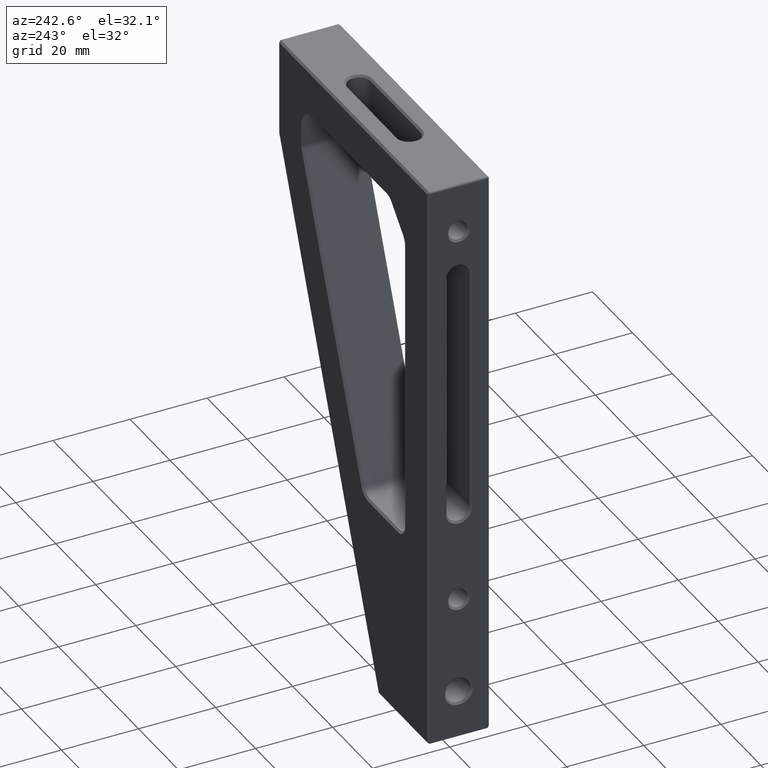
[diagram: clean part render]
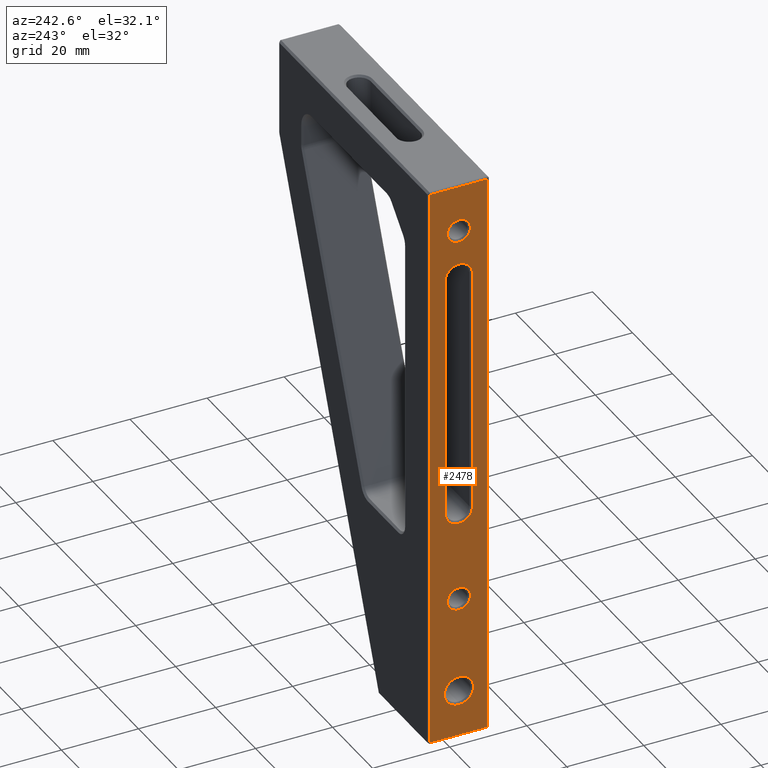
[diagram: same view with one face highlighted and labeled with its STEP entity id]
A machine part, auxiliary view. The second image highlights one B-rep face of the part: STEP entity #2478.
In plain terms, the highlighted planar face has unit normal (1, 0, -0).
Its self-contained STEP definition (entity closure, byte-faithful):
#29 = VERTEX_POINT ( 'NONE', #463 ) ;
#118 = DIRECTION ( 'NONE',  ( -1.000000000000000000, 0.000000000000000000, 0.000000000000000000 ) ) ;
#120 = AXIS2_PLACEMENT_3D ( 'NONE', #1372, #2369, #1638 ) ;
#128 = CARTESIAN_POINT ( 'NONE',  ( -40.58705027806580290, -2.083758937690479929, 115.4999999999858886 ) ) ;
#133 = DIRECTION ( 'NONE',  ( 0.000000000000000000, 0.000000000000000000, 1.000000000000000000 ) ) ;
#141 = DIRECTION ( 'NONE',  ( -1.000000000000000000, 0.000000000000000000, 0.000000000000000000 ) ) ;
#147 = VERTEX_POINT ( 'NONE', #3188 ) ;
#176 = EDGE_CURVE ( 'NONE', #1049, #421, #1603, .T. ) ;
#235 = DIRECTION ( 'NONE',  ( -1.850371707708594316E-16, 0.000000000000000000, -1.000000000000000000 ) ) ;
#246 = LINE ( 'NONE', #1510, #865 ) ;
#290 = EDGE_LOOP ( 'NONE', ( #1936 ) ) ;
#351 = VERTEX_POINT ( 'NONE', #128 ) ;
#363 = CARTESIAN_POINT ( 'NONE',  ( -40.58705027804308685, -2.083758937690479929, 87.50000000000001421 ) ) ;
#390 = LINE ( 'NONE', #904, #2036 ) ;
#400 = FACE_BOUND ( 'NONE', #290, .T. ) ;
#415 = AXIS2_PLACEMENT_3D ( 'NONE', #2472, #1475, #504 ) ;
#421 = VERTEX_POINT ( 'NONE', #925 ) ;
#443 = ORIENTED_EDGE ( 'NONE', *, *, #2701, .F. ) ;
#463 = CARTESIAN_POINT ( 'NONE',  ( -40.58705027806152543, -9.583758937690465274, 75.49999999999998579 ) ) ;
#504 = DIRECTION ( 'NONE',  ( 0.000000000000000000, 0.000000000000000000, 1.000000000000000000 ) ) ;
#534 = CIRCLE ( 'NONE', #3166, 3.800000000012460077 ) ;
#538 = DIRECTION ( 'NONE',  ( -1.000000000000000000, 0.000000000000000000, 0.000000000000000000 ) ) ;
#540 = DIRECTION ( 'NONE',  ( -1.850371707708594316E-16, 0.000000000000000000, -1.000000000000000000 ) ) ;
#572 = EDGE_CURVE ( 'NONE', #2790, #2034, #390, .T. ) ;
#609 = CARTESIAN_POINT ( 'NONE',  ( -40.58705027806152543, -9.583758937690465274, 74.99999999999998579 ) ) ;
#634 = PLANE ( 'NONE',  #120 ) ;
#692 = ORIENTED_EDGE ( 'NONE', *, *, #2921, .F. ) ;
#713 = EDGE_LOOP ( 'NONE', ( #692, #1666, #3170, #1392 ) ) ;
#715 = LINE ( 'NONE', #2996, #1160 ) ;
#753 = VERTEX_POINT ( 'NONE', #772 ) ;
#772 = CARTESIAN_POINT ( 'NONE',  ( -40.58705027805290655, 1.416241062312324051, 136.4999999999999432 ) ) ;
#779 = ORIENTED_EDGE ( 'NONE', *, *, #2639, .F. ) ;
#780 = CIRCLE ( 'NONE', #1363, 3.500000000030922820 ) ;
#864 = FACE_OUTER_BOUND ( 'NONE', #713, .T. ) ;
#865 = VECTOR ( 'NONE', #1257, 1000.000000000000000 ) ;
#890 = DIRECTION ( 'NONE',  ( 0.000000000000000000, 0.000000000000000000, 1.000000000000000000 ) ) ;
#904 = CARTESIAN_POINT ( 'NONE',  ( -40.58705027806149701, 5.916241062309521404, 224.4999999999999716 ) ) ;
#925 = CARTESIAN_POINT ( 'NONE',  ( -40.58705027809315169, -5.583758937661730037, 199.9999999999999432 ) ) ;
#969 = CARTESIAN_POINT ( 'NONE',  ( -40.58705027810344035, 1.416241062351438096, 199.9999999999999716 ) ) ;
#982 = CARTESIAN_POINT ( 'NONE',  ( -40.58705027806151833, 5.416241062309541832, 149.9999999999999716 ) ) ;
#1003 = ORIENTED_EDGE ( 'NONE', *, *, #3042, .F. ) ;
#1006 = DIRECTION ( 'NONE',  ( 0.000000000000000000, 0.000000000000000000, 1.000000000000000000 ) ) ;
#1049 = VERTEX_POINT ( 'NONE', #1611 ) ;
#1160 = VECTOR ( 'NONE', #235, 1000.000000000000000 ) ;
#1166 = DIRECTION ( 'NONE',  ( 0.000000000000000000, 0.000000000000000000, 1.000000000000000000 ) ) ;
#1174 = EDGE_LOOP ( 'NONE', ( #779, #443, #3033, #2394 ) ) ;
#1212 = VECTOR ( 'NONE', #2981, 1000.000000000000000 ) ;
#1257 = DIRECTION ( 'NONE',  ( 0.000000000000000000, 1.000000000000000000, 0.000000000000000000 ) ) ;
#1262 = EDGE_CURVE ( 'NONE', #3174, #3174, #1543, .T. ) ;
#1363 = AXIS2_PLACEMENT_3D ( 'NONE', #2852, #2283, #133 ) ;
#1372 = CARTESIAN_POINT ( 'NONE',  ( -40.58705027806152543, 5.916241062309521404, 74.99999999999998579 ) ) ;
#1380 = DIRECTION ( 'NONE',  ( -0.000000000000000000, -1.000000000000000000, -0.000000000000000000 ) ) ;
#1392 = ORIENTED_EDGE ( 'NONE', *, *, #1402, .F. ) ;
#1402 = EDGE_CURVE ( 'NONE', #29, #2421, #246, .T. ) ;
#1407 = FACE_BOUND ( 'NONE', #1531, .T. ) ;
#1461 = CIRCLE ( 'NONE', #2240, 2.999999999985902832 ) ;
#1475 = DIRECTION ( 'NONE',  ( -1.000000000000000000, 0.000000000000000000, 0.000000000000000000 ) ) ;
#1510 = CARTESIAN_POINT ( 'NONE',  ( -40.58705027806152543, 5.916241062309521404, 75.49999999999998579 ) ) ;
#1531 = EDGE_LOOP ( 'NONE', ( #1003 ) ) ;
#1543 = CIRCLE ( 'NONE', #1711, 3.000000000042746251 ) ;
#1587 = DIRECTION ( 'NONE',  ( 1.850371707708594316E-16, -0.000000000000000000, 1.000000000000000000 ) ) ;
#1603 = LINE ( 'NONE', #3154, #3234 ) ;
#1611 = CARTESIAN_POINT ( 'NONE',  ( -40.58705027806489340, -5.583758937677504086, 136.4999999999999716 ) ) ;
#1638 = DIRECTION ( 'NONE',  ( -1.850371707708594316E-16, 0.000000000000000000, -1.000000000000000000 ) ) ;
#1666 = ORIENTED_EDGE ( 'NONE', *, *, #572, .F. ) ;
#1683 = CIRCLE ( 'NONE', #415, 3.499999999974079401 ) ;
#1711 = AXIS2_PLACEMENT_3D ( 'NONE', #1791, #538, #1006 ) ;
#1735 = LINE ( 'NONE', #982, #1212 ) ;
#1791 = CARTESIAN_POINT ( 'NONE',  ( -40.58705027815675948, -2.083758937690479929, 212.5000000000000000 ) ) ;
#1868 = FACE_BOUND ( 'NONE', #2777, .T. ) ;
#1876 = CARTESIAN_POINT ( 'NONE',  ( -40.58705027806411181, 5.416241062315866550, 224.5000000000000000 ) ) ;
#1928 = CARTESIAN_POINT ( 'NONE',  ( -40.58705027806580290, -2.083758937690479929, 112.4999999999999858 ) ) ;
#1936 = ORIENTED_EDGE ( 'NONE', *, *, #2374, .F. ) ;
#2008 = VERTEX_POINT ( 'NONE', #969 ) ;
#2028 = EDGE_CURVE ( 'NONE', #753, #1049, #1683, .T. ) ;
#2034 = VERTEX_POINT ( 'NONE', #2718 ) ;
#2036 = VECTOR ( 'NONE', #1380, 1000.000000000000000 ) ;
#2091 = LINE ( 'NONE', #609, #2497 ) ;
#2169 = CARTESIAN_POINT ( 'NONE',  ( -40.58705027815675948, -2.083758937690479929, 215.5000000000427463 ) ) ;
#2240 = AXIS2_PLACEMENT_3D ( 'NONE', #1928, #118, #890 ) ;
#2283 = DIRECTION ( 'NONE',  ( -1.000000000000000000, 0.000000000000000000, 0.000000000000000000 ) ) ;
#2296 = ORIENTED_EDGE ( 'NONE', *, *, #1262, .F. ) ;
#2369 = DIRECTION ( 'NONE',  ( 1.000000000000000000, 0.000000000000000000, -1.850371707708594316E-16 ) ) ;
#2374 = EDGE_CURVE ( 'NONE', #147, #147, #534, .T. ) ;
#2394 = ORIENTED_EDGE ( 'NONE', *, *, #2028, .F. ) ;
#2421 = VERTEX_POINT ( 'NONE', #3167 ) ;
#2472 = CARTESIAN_POINT ( 'NONE',  ( -40.58705027806489340, -2.083758937690479929, 136.4999999999999716 ) ) ;
#2478 = ADVANCED_FACE ( 'NONE', ( #864, #400, #1407, #1868, #2610 ), #634, .F. ) ;
#2497 = VECTOR ( 'NONE', #540, 1000.000000000000000 ) ;
#2574 = EDGE_CURVE ( 'NONE', #2421, #2790, #1735, .T. ) ;
#2610 = FACE_BOUND ( 'NONE', #1174, .T. ) ;
#2639 = EDGE_CURVE ( 'NONE', #2008, #753, #715, .T. ) ;
#2701 = EDGE_CURVE ( 'NONE', #421, #2008, #780, .T. ) ;
#2718 = CARTESIAN_POINT ( 'NONE',  ( -40.58705027806149701, -9.583758937690465274, 224.4999999999999716 ) ) ;
#2777 = EDGE_LOOP ( 'NONE', ( #2296 ) ) ;
#2790 = VERTEX_POINT ( 'NONE', #1876 ) ;
#2852 = CARTESIAN_POINT ( 'NONE',  ( -40.58705027814538369, -2.083758937690479929, 199.9999999999999716 ) ) ;
#2921 = EDGE_CURVE ( 'NONE', #2034, #29, #2091, .T. ) ;
#2981 = DIRECTION ( 'NONE',  ( 9.251858538542971581E-17, -9.251858538542971581E-17, 1.000000000000000000 ) ) ;
#2996 = CARTESIAN_POINT ( 'NONE',  ( -40.58705027806152543, 1.416241062309505194, 74.99999999999998579 ) ) ;
#3033 = ORIENTED_EDGE ( 'NONE', *, *, #176, .F. ) ;
#3042 = EDGE_CURVE ( 'NONE', #351, #351, #1461, .T. ) ;
#3154 = CARTESIAN_POINT ( 'NONE',  ( -40.58705027806152543, -5.583758937690451063, 74.99999999999998579 ) ) ;
#3166 = AXIS2_PLACEMENT_3D ( 'NONE', #363, #141, #1166 ) ;
#3167 = CARTESIAN_POINT ( 'NONE',  ( -40.58705027806436050, 5.416241062315873656, 75.49999999999995737 ) ) ;
#3170 = ORIENTED_EDGE ( 'NONE', *, *, #2574, .F. ) ;
#3174 = VERTEX_POINT ( 'NONE', #2169 ) ;
#3188 = CARTESIAN_POINT ( 'NONE',  ( -40.58705027804308685, -2.083758937690479929, 91.30000000001247429 ) ) ;
#3234 = VECTOR ( 'NONE', #1587, 1000.000000000000000 ) ;